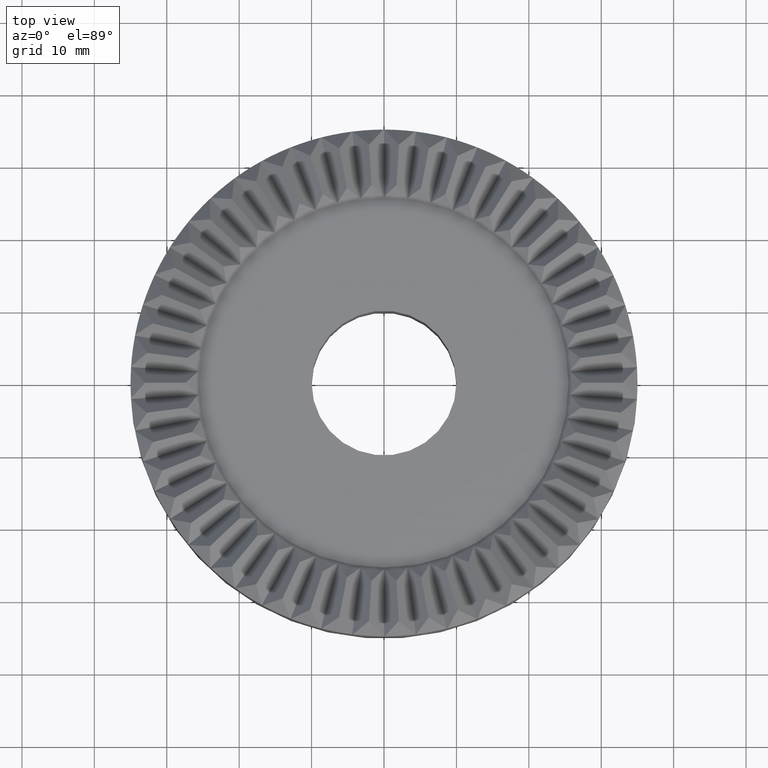
[diagram: clean part render]
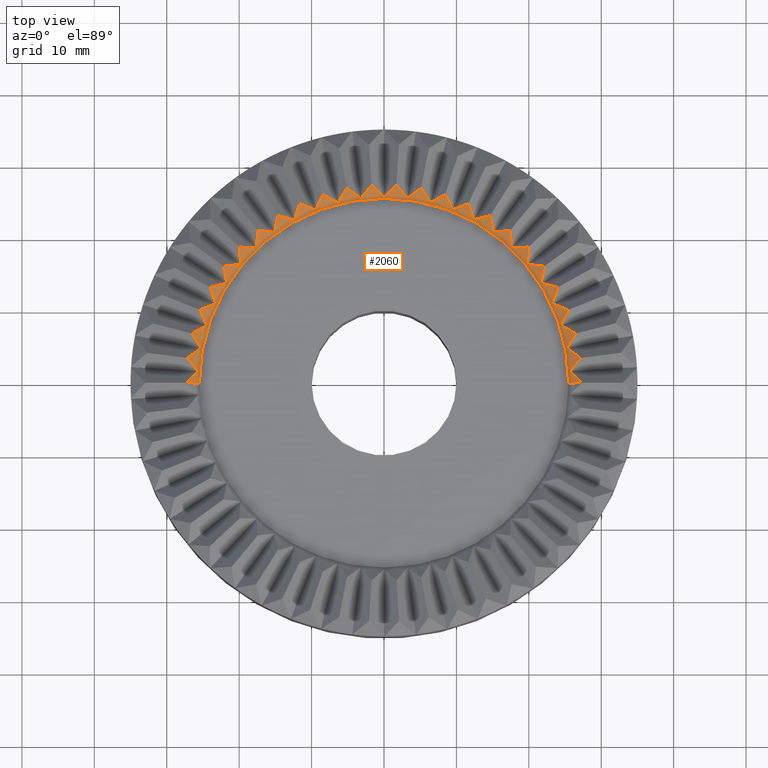
[diagram: same view with one face highlighted and labeled with its STEP entity id]
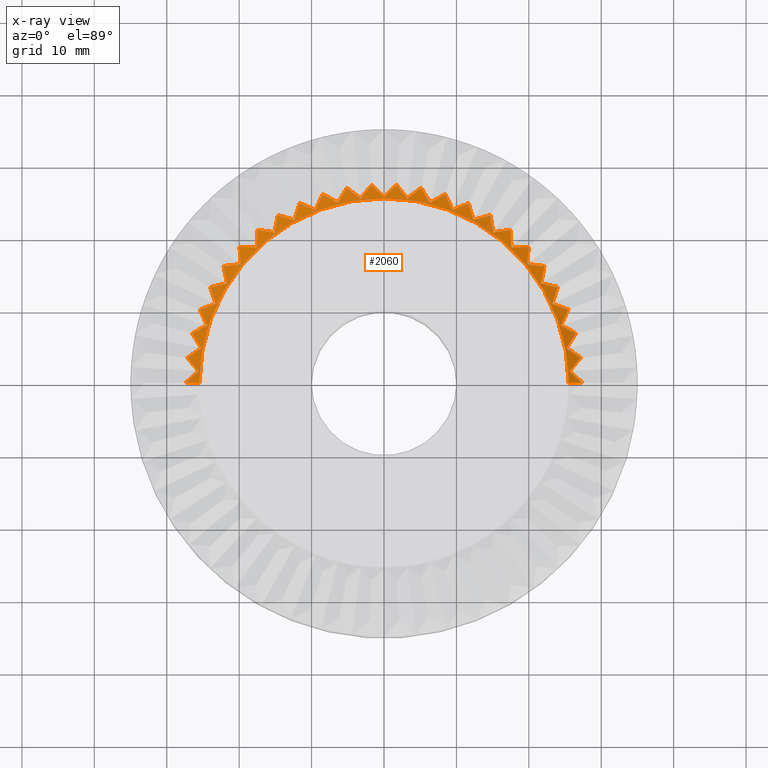
[diagram: x-ray of the same camera — body ghosted, the highlighted face saturated]
A machine part, top view. The second image highlights one B-rep face of the part: STEP entity #2060.
The next image is the same camera in x-ray: the body ghosted, the highlighted face saturated — about 0% of this face is hidden behind the body in this view.
In plain terms, the highlighted conical surface has half-angle 45 deg.
Its self-contained STEP definition (entity closure, byte-faithful):
#20 = CARTESIAN_POINT ( 'NONE',  ( -17.44653502338537600, 21.08923807742209200, 19.87037718060169700 ) ) ;
#21 = ORIENTED_EDGE ( 'NONE', *, *, #2880, .F. ) ;
#38 = VERTEX_POINT ( 'NONE', #3730 ) ;
#71 = ORIENTED_EDGE ( 'NONE', *, *, #3069, .F. ) ;
#80 = CARTESIAN_POINT ( 'NONE',  ( -23.25556846965079300, 10.94323986110385300, 18.20167238730329700 ) ) ;
#84 = B_SPLINE_CURVE_WITH_KNOTS ( 'NONE', 3,
 ( #4562, #1085, #3701, #1101 ),
 .UNSPECIFIED., .F., .F.,
 ( 4, 4 ),
 ( 3.394180524886262300E-007, 0.002889053276711179500 ),
 .UNSPECIFIED. ) ;
#89 = CARTESIAN_POINT ( 'NONE',  ( -1.718600202883020500, 27.31636799340355600, 19.87037718060149800 ) ) ;
#94 = CARTESIAN_POINT ( 'NONE',  ( 28.50000000000000000, 0.0000000000000000000, 21.00000000000000000 ) ) ;
#120 = CARTESIAN_POINT ( 'NONE',  ( 19.95214628534956300, 18.73631248715749500, 19.87037718060169300 ) ) ;
#121 = B_SPLINE_CURVE_WITH_KNOTS ( 'NONE', 3,
 ( #1725, #4321, #4765, #2153 ),
 .UNSPECIFIED., .F., .F.,
 ( 4, 4 ),
 ( 3.394180524866268700E-007, 0.002889053276711177800 ),
 .UNSPECIFIED. ) ;
#128 = CARTESIAN_POINT ( 'NONE',  ( 9.461416650824181900, 23.89681063371794800, 18.20167238730329700 ) ) ;
#131 = CARTESIAN_POINT ( 'NONE',  ( -3.221273708310759400, 25.49900702381200500, 18.20167238730329700 ) ) ;
#138 = VERTEX_POINT ( 'NONE', #5184 ) ;
#149 = CARTESIAN_POINT ( 'NONE',  ( -26.51048645087007600, 6.806736012703632700, 19.87037718060169700 ) ) ;
#170 = CARTESIAN_POINT ( 'NONE',  ( 22.14310028155906500, 16.08790405644009500, 19.87037718060169700 ) ) ;
#180 = CARTESIAN_POINT ( 'NONE',  ( -24.79184427667273000, 8.651943769504132600, 18.75204270945754500 ) ) ;
#185 = EDGE_CURVE ( 'NONE', #5058, #5194, #1898, .T. ) ;
#196 = B_SPLINE_CURVE_WITH_KNOTS ( 'NONE', 3,
 ( #80, #1345, #3541, #954 ),
 .UNSPECIFIED., .F., .F.,
 ( 4, 4 ),
 ( 3.394180524882186500E-007, 0.002889053276711170400 ),
 .UNSPECIFIED. ) ;
#199 = ORIENTED_EDGE ( 'NONE', *, *, #4937, .F. ) ;
#210 = ORIENTED_EDGE ( 'NONE', *, *, #875, .F. ) ;
#212 = CARTESIAN_POINT ( 'NONE',  ( 21.36884357978661300, 16.19768887784556800, 19.30852024980680400 ) ) ;
#213 = CARTESIAN_POINT ( 'NONE',  ( 11.90666127482051500, 24.02548684642122700, 19.30852024980681500 ) ) ;
#223 = CARTESIAN_POINT ( 'NONE',  ( -22.14310028155885800, 16.08790405644036200, 19.87037718060169300 ) ) ;
#226 = VERTEX_POINT ( 'NONE', #4817 ) ;
#229 = CARTESIAN_POINT ( 'NONE',  ( -26.16461381950308500, 2.214646090399074600, 18.75204270945754500 ) ) ;
#238 = B_SPLINE_CURVE_WITH_KNOTS ( 'NONE', 3,
 ( #4593, #1548, #262, #3292 ),
 .UNSPECIFIED., .F., .F.,
 ( 4, 4 ),
 ( 0.001924298654894845900, 0.004813012513553564500 ),
 .UNSPECIFIED. ) ;
#251 = CARTESIAN_POINT ( 'NONE',  ( 21.86131197991398900, 14.54560800194758300, 18.75204270945755200 ) ) ;
#258 = CARTESIAN_POINT ( 'NONE',  ( -9.461416650823839100, 23.89681063371807900, 18.20167238730329700 ) ) ;
#262 = CARTESIAN_POINT ( 'NONE',  ( 23.51197709033789400, 11.69096261788901500, 18.75204270945755200 ) ) ;
#271 = CARTESIAN_POINT ( 'NONE',  ( 27.37037718060170000, -7.172689979658260100E-014, 19.87037718060169300 ) ) ;
#274 = EDGE_CURVE ( 'NONE', #331, #1651, #2738, .T. ) ;
#304 = VERTEX_POINT ( 'NONE', #1147 ) ;
#305 = CARTESIAN_POINT ( 'NONE',  ( 25.24642510845361100, 4.816013158984427300, 18.20167238730329700 ) ) ;
#308 = CARTESIAN_POINT ( 'NONE',  ( 5.557696003136300100, 26.23174824630628500, 19.30852024980681100 ) ) ;
#327 = ORIENTED_EDGE ( 'NONE', *, *, #1519, .F. ) ;
#331 = VERTEX_POINT ( 'NONE', #4455 ) ;
#334 = EDGE_CURVE ( 'NONE', #4509, #3887, #5316, .T. ) ;
#343 = CARTESIAN_POINT ( 'NONE',  ( 17.59400545025578600, 18.73571284260724200, 18.20167238730329700 ) ) ;
#363 = CARTESIAN_POINT ( 'NONE',  ( -27.37037718060170000, 2.754969630652511800E-013, 19.87037718060169300 ) ) ;
#364 = B_SPLINE_CURVE_WITH_KNOTS ( 'NONE', 3,
 ( #1426, #4461, #4903, #2300 ),
 .UNSPECIFIED., .F., .F.,
 ( 4, 4 ),
 ( 0.001924298654894850000, 0.004813012513553565300 ),
 .UNSPECIFIED. ) ;
#413 = B_SPLINE_CURVE_WITH_KNOTS ( 'NONE', 3,
 ( #4331, #1290, #4777, #2164 ),
 .UNSPECIFIED., .F., .F.,
 ( 4, 4 ),
 ( 0.001924298654894838500, 0.004813012513553565300 ),
 .UNSPECIFIED. ) ;
#415 = VERTEX_POINT ( 'NONE', #4623 ) ;
#421 = CARTESIAN_POINT ( 'NONE',  ( -21.70063972870404700, 13.77164474088914900, 18.20167238730329700 ) ) ;
#436 = B_SPLINE_CURVE_WITH_KNOTS ( 'NONE', 3,
 ( #3071, #4795, #907, #3930 ),
 .UNSPECIFIED., .F., .F.,
 ( 4, 4 ),
 ( 3.394180524890934300E-007, 0.002889053276711179500 ),
 .UNSPECIFIED. ) ;
#439 = ORIENTED_EDGE ( 'NONE', *, *, #4667, .F. ) ;
#450 = CARTESIAN_POINT ( 'NONE',  ( -17.55715305117545500, 19.52531818862505700, 18.75204270945754800 ) ) ;
#461 = CARTESIAN_POINT ( 'NONE',  ( -14.66578148204778900, 23.10957378510530800, 19.87037718060169300 ) ) ;
#497 = CARTESIAN_POINT ( 'NONE',  ( -10.19156391704509600, 24.19966319092554100, 18.75204270945755200 ) ) ;
#502 = CARTESIAN_POINT ( 'NONE',  ( -21.70063972870404700, 13.77164474088914900, 18.20167238730329700 ) ) ;
#508 = CARTESIAN_POINT ( 'NONE',  ( -19.95214628534934300, 18.73631248715776100, 19.87037718060171100 ) ) ;
#509 = B_SPLINE_CURVE_WITH_KNOTS ( 'NONE', 3,
 ( #2867, #5458, #710, #3745 ),
 .UNSPECIFIED., .F., .F.,
 ( 4, 4 ),
 ( 3.394180524877682400E-007, 0.002889053276711182500 ),
 .UNSPECIFIED. ) ;
#531 = CARTESIAN_POINT ( 'NONE',  ( -24.72570348353567800, 10.37459339758149700, 19.30852024980681800 ) ) ;
#541 = EDGE_CURVE ( 'NONE', #2216, #2702, #2699, .T. ) ;
#549 = EDGE_CURVE ( 'NONE', #2573, #5278, #1827, .T. ) ;
#556 = VERTEX_POINT ( 'NONE', #1286 ) ;
#579 = CARTESIAN_POINT ( 'NONE',  ( -19.95214628534934300, 18.73631248715776100, 19.87037718060171100 ) ) ;
#627 = CARTESIAN_POINT ( 'NONE',  ( -19.95214628534934300, 18.73631248715776100, 19.87037718060171100 ) ) ;
#632 = CARTESIAN_POINT ( 'NONE',  ( 19.17023514226682900, 18.74819152641308100, 19.30852024980680400 ) ) ;
#643 = CARTESIAN_POINT ( 'NONE',  ( -17.59400545025551200, 18.73571284260749400, 18.20167238730329700 ) ) ;
#652 = EDGE_CURVE ( 'NONE', #4013, #4349, #5385, .T. ) ;
#678 = CARTESIAN_POINT ( 'NONE',  ( 24.79184427667285800, 8.651943769503791500, 18.75204270945755200 ) ) ;
#685 = EDGE_CURVE ( 'NONE', #5041, #2650, #4083, .T. ) ;
#689 = EDGE_CURVE ( 'NONE', #1802, #226, #196, .T. ) ;
#705 = VERTEX_POINT ( 'NONE', #508 ) ;
#710 = CARTESIAN_POINT ( 'NONE',  ( -11.90666127482017500, 24.02548684642138700, 19.30852024980680400 ) ) ;
#721 = CARTESIAN_POINT ( 'NONE',  ( -25.49999999999999300, 3.238064074625089200E-015, 18.00000000000000400 ) ) ;
#748 = B_SPLINE_CURVE_WITH_KNOTS ( 'NONE', 3,
 ( #4507, #5366, #3643, #1049 ),
 .UNSPECIFIED., .F., .F.,
 ( 4, 4 ),
 ( 3.394180524877406600E-007, 0.002889053276711177800 ),
 .UNSPECIFIED. ) ;
#791 = B_SPLINE_CURVE_WITH_KNOTS ( 'NONE', 3,
 ( #2707, #1410, #2729, #131 ),
 .UNSPECIFIED., .F., .F.,
 ( 4, 4 ),
 ( 0.001924298654894848900, 0.004813012513553564500 ),
 .UNSPECIFIED. ) ;
#799 = EDGE_CURVE ( 'NONE', #2650, #1097, #1064, .T. ) ;
#809 = DIRECTION ( 'NONE',  ( 1.000000000000000000, 0.0000000000000000000, 0.0000000000000000000 ) ) ;
#816 = CARTESIAN_POINT ( 'NONE',  ( 0.5673862972167176300, 26.25204270945754100, 18.75204270945755200 ) ) ;
#823 = CARTESIAN_POINT ( 'NONE',  ( 8.801581739902577100, 25.32833906510024800, 19.30852024980681100 ) ) ;
#826 = CARTESIAN_POINT ( 'NONE',  ( 0.0000000000000000000, 0.0000000000000000000, 21.00000000000000000 ) ) ;
#837 = CARTESIAN_POINT ( 'NONE',  ( -25.83101526379211400, 7.193834260157009600, 19.30852024980681100 ) ) ;
#858 = B_SPLINE_CURVE_WITH_KNOTS ( 'NONE', 3,
 ( #363, #1664, #5144, #2541 ),
 .UNSPECIFIED., .F., .F.,
 ( 4, 4 ),
 ( 0.001924298654894845900, 0.004813012513553564500 ),
 .UNSPECIFIED. ) ;
#875 = EDGE_CURVE ( 'NONE', #4473, #3847, #2371, .T. ) ;
#885 = CARTESIAN_POINT ( 'NONE',  ( 14.66578148204808900, 23.10957378510512300, 19.87037718060169700 ) ) ;
#896 = CARTESIAN_POINT ( 'NONE',  ( -17.44653502338537600, 21.08923807742209200, 19.87037718060169700 ) ) ;
#905 = ORIENTED_EDGE ( 'NONE', *, *, #2582, .F. ) ;
#907 = CARTESIAN_POINT ( 'NONE',  ( 26.80852024980679700, 0.5439144570318337200, 19.30852024980680400 ) ) ;
#946 = CARTESIAN_POINT ( 'NONE',  ( 11.65373980582542600, 24.76545770920704100, 19.87037718060169300 ) ) ;
#947 = CARTESIAN_POINT ( 'NONE',  ( 25.89336444933556400, 4.361805947464525000, 18.75204270945754500 ) ) ;
#954 = CARTESIAN_POINT ( 'NONE',  ( -23.98484435868125800, 13.18577976830487200, 19.87037718060169300 ) ) ;
#963 = EDGE_CURVE ( 'NONE', #3539, #4528, #121, .T. ) ;
#964 = CARTESIAN_POINT ( 'NONE',  ( -11.65373980582511500, 24.76545770920719000, 19.87037718060169300 ) ) ;
#990 = EDGE_CURVE ( 'NONE', #2366, #2054, #995, .T. ) ;
#994 = CARTESIAN_POINT ( 'NONE',  ( 19.91490527713479300, 17.95519837605864000, 19.30852024980681100 ) ) ;
#995 = B_SPLINE_CURVE_WITH_KNOTS ( 'NONE', 3,
 ( #3485, #450, #3062, #896 ),
 .UNSPECIFIED., .F., .F.,
 ( 4, 4 ),
 ( 3.394180524870900300E-007, 0.002889053276711180800 ),
 .UNSPECIFIED. ) ;
#1007 = CARTESIAN_POINT ( 'NONE',  ( -23.99513976168306700, 10.66418967604892900, 18.75204270945755200 ) ) ;
#1034 = ORIENTED_EDGE ( 'NONE', *, *, #2500, .F. ) ;
#1048 = CARTESIAN_POINT ( 'NONE',  ( -23.23045258892456700, 13.39173899964443300, 19.30852024980681500 ) ) ;
#1049 = CARTESIAN_POINT ( 'NONE',  ( 17.44653502338564300, 21.08923807742187200, 19.87037718060169700 ) ) ;
#1050 = CARTESIAN_POINT ( 'NONE',  ( -8.457911691257853800, 26.03077557106753300, 19.87037718060169300 ) ) ;
#1064 = B_SPLINE_CURVE_WITH_KNOTS ( 'NONE', 3,
 ( #258, #3288, #1570, #4607 ),
 .UNSPECIFIED., .F., .F.,
 ( 4, 4 ),
 ( 3.394180524854551500E-007, 0.002889053276711181700 ),
 .UNSPECIFIED. ) ;
#1080 = CARTESIAN_POINT ( 'NONE',  ( 12.14981362553998100, 23.27818082441356000, 18.75204270945755200 ) ) ;
#1085 = CARTESIAN_POINT ( 'NONE',  ( -14.97153839034720100, 21.57184998686510000, 18.75204270945754500 ) ) ;
#1091 = CARTESIAN_POINT ( 'NONE',  ( -19.80347893590182200, 16.38286255632882400, 18.20167238730329700 ) ) ;
#1097 = VERTEX_POINT ( 'NONE', #1050 ) ;
#1099 = CARTESIAN_POINT ( 'NONE',  ( -27.15455358139722000, 3.430417875919730400, 19.87037718060169300 ) ) ;
#1101 = CARTESIAN_POINT ( 'NONE',  ( -14.66578148204778900, 23.10957378510530800, 19.87037718060169300 ) ) ;
#1103 = CIRCLE ( 'NONE', #2963, 25.49999999999999300 ) ;
#1112 = CARTESIAN_POINT ( 'NONE',  ( 1.718600202883273000, 27.31636799340373400, 19.87037718060169300 ) ) ;
#1121 = ORIENTED_EDGE ( 'NONE', *, *, #5137, .F. ) ;
#1142 = ORIENTED_EDGE ( 'NONE', *, *, #2353, .F. ) ;
#1147 = CARTESIAN_POINT ( 'NONE',  ( 25.49999999999999300, 0.0000000000000000000, 18.00000000000000400 ) ) ;
#1187 = B_SPLINE_CURVE_WITH_KNOTS ( 'NONE', 3,
 ( #5386, #2352, #632, #3660 ),
 .UNSPECIFIED., .F., .F.,
 ( 4, 4 ),
 ( 3.394180524873286300E-007, 0.002889053276711178200 ),
 .UNSPECIFIED. ) ;
#1239 = CARTESIAN_POINT ( 'NONE',  ( 4.489135529877348300, 26.43558705826791700, 19.30852024980680400 ) ) ;
#1253 = CARTESIAN_POINT ( 'NONE',  ( 13.90548131842721300, 22.92662622855227600, 19.30852024980680800 ) ) ;
#1282 = LINE ( 'NONE', #3144, #2168 ) ;
#1286 = CARTESIAN_POINT ( 'NONE',  ( -6.391746005946179000, 24.89420708718675700, 18.20167238730329700 ) ) ;
#1290 = CARTESIAN_POINT ( 'NONE',  ( 26.10154731368541900, 6.140181491805562600, 19.30852024980681500 ) ) ;
#1297 = VERTEX_POINT ( 'NONE', #1539 ) ;
#1303 = EDGE_CURVE ( 'NONE', #3236, #4509, #2649, .T. ) ;
#1305 = B_SPLINE_CURVE_WITH_KNOTS ( 'NONE', 3,
 ( #2241, #1799, #2678, #89 ),
 .UNSPECIFIED., .F., .F.,
 ( 4, 4 ),
 ( 3.394180524873027500E-007, 0.002889053276710869400 ),
 .UNSPECIFIED. ) ;
#1345 = CARTESIAN_POINT ( 'NONE',  ( -23.51197709033772700, 11.69096261788934000, 18.75204270945754800 ) ) ;
#1357 = ORIENTED_EDGE ( 'NONE', *, *, #1601, .F. ) ;
#1360 = CARTESIAN_POINT ( 'NONE',  ( -10.92236424492047300, 24.48866187079548600, 19.30852024980681500 ) ) ;
#1409 = CARTESIAN_POINT ( 'NONE',  ( 23.23045258892474200, 13.39173899964411300, 19.30852024980680100 ) ) ;
#1410 = CARTESIAN_POINT ( 'NONE',  ( -4.489135529876984200, 26.43558705826799100, 19.30852024980681100 ) ) ;
#1416 = ORIENTED_EDGE ( 'NONE', *, *, #3297, .F. ) ;
#1426 = CARTESIAN_POINT ( 'NONE',  ( 27.15455358139726300, 3.430417875919392800, 19.87037718060169000 ) ) ;
#1477 = CARTESIAN_POINT ( 'NONE',  ( -25.44833311241572800, 10.07570785642018200, 19.87037718060169300 ) ) ;
#1478 = CARTESIAN_POINT ( 'NONE',  ( -21.70063972870404700, 13.77164474088914900, 18.20167238730329700 ) ) ;
#1519 = EDGE_CURVE ( 'NONE', #138, #5058, #5312, .T. ) ;
#1539 = CARTESIAN_POINT ( 'NONE',  ( 3.221273708311120000, 25.49900702381196300, 18.20167238730329700 ) ) ;
#1540 = CARTESIAN_POINT ( 'NONE',  ( -5.979056725922363900, 25.56838974784400500, 18.75204270945754500 ) ) ;
#1548 = CARTESIAN_POINT ( 'NONE',  ( 23.75451816506908600, 12.43846725550510800, 19.30852024980681500 ) ) ;
#1554 = EDGE_CURVE ( 'NONE', #304, #1755, #3454, .T. ) ;
#1557 = EDGE_CURVE ( 'NONE', #2856, #415, #1282, .T. ) ;
#1564 = CARTESIAN_POINT ( 'NONE',  ( 14.82396564873985200, 22.34373834804397400, 19.30852024980681500 ) ) ;
#1570 = CARTESIAN_POINT ( 'NONE',  ( -8.801581739902223600, 25.32833906510036600, 19.30852024980680400 ) ) ;
#1587 = CARTESIAN_POINT ( 'NONE',  ( 14.97153839034751100, 21.57184998686489400, 18.75204270945755200 ) ) ;
#1601 = EDGE_CURVE ( 'NONE', #3117, #2216, #2258, .T. ) ;
#1614 = B_SPLINE_CURVE_WITH_KNOTS ( 'NONE', 3,
 ( #4522, #3224, #4536, #1932 ),
 .UNSPECIFIED., .F., .F.,
 ( 4, 4 ),
 ( 0.001924298654894875600, 0.004813012513553567900 ),
 .UNSPECIFIED. ) ;
#1616 = CARTESIAN_POINT ( 'NONE',  ( -5.128697256807923200, 26.88557255214054500, 19.87037718060169000 ) ) ;
#1622 = ORIENTED_EDGE ( 'NONE', *, *, #1303, .F. ) ;
#1629 = CARTESIAN_POINT ( 'NONE',  ( 25.83101526379221400, 7.193834260156647200, 19.30852024980681100 ) ) ;
#1635 = ORIENTED_EDGE ( 'NONE', *, *, #689, .F. ) ;
#1651 = VERTEX_POINT ( 'NONE', #4511 ) ;
#1661 = B_SPLINE_CURVE_WITH_KNOTS ( 'NONE', 3,
 ( #4472, #2286, #3177, #579 ),
 .UNSPECIFIED., .F., .F.,
 ( 4, 4 ),
 ( 3.394180524860352700E-007, 0.002889053276711207700 ),
 .UNSPECIFIED. ) ;
#1664 = CARTESIAN_POINT ( 'NONE',  ( -26.80852024980680400, 0.5439144570322106400, 19.30852024980681100 ) ) ;
#1665 = B_SPLINE_CURVE_WITH_KNOTS ( 'NONE', 3,
 ( #223, #4955, #3693, #1091 ),
 .UNSPECIFIED., .F., .F.,
 ( 4, 4 ),
 ( 0.001924298654894845000, 0.004813012513553562700 ),
 .UNSPECIFIED. ) ;
#1670 = CARTESIAN_POINT ( 'NONE',  ( -7.766994962567521200, 25.66449668651853200, 19.30852024980681500 ) ) ;
#1673 = DIRECTION ( 'NONE',  ( -0.0000000000000000000, -0.0000000000000000000, 1.000000000000000000 ) ) ;
#1681 = ORIENTED_EDGE ( 'NONE', *, *, #2313, .F. ) ;
#1711 = EDGE_CURVE ( 'NONE', #1782, #4013, #84, .T. ) ;
#1722 = ORIENTED_EDGE ( 'NONE', *, *, #2248, .F. ) ;
#1723 = CARTESIAN_POINT ( 'NONE',  ( 27.15455358139726300, 3.430417875919392800, 19.87037718060169000 ) ) ;
#1725 = CARTESIAN_POINT ( 'NONE',  ( 6.391746005946532500, 24.89420708718666100, 18.20167238730329700 ) ) ;
#1742 = EDGE_CURVE ( 'NONE', #4349, #5041, #509, .T. ) ;
#1755 = VERTEX_POINT ( 'NONE', #271 ) ;
#1782 = VERTEX_POINT ( 'NONE', #2480 ) ;
#1785 = CARTESIAN_POINT ( 'NONE',  ( -14.66578148204778900, 23.10957378510530800, 19.87037718060169300 ) ) ;
#1792 = DIRECTION ( 'NONE',  ( 0.0000000000000000000, 0.0000000000000000000, 1.000000000000000000 ) ) ;
#1799 = CARTESIAN_POINT ( 'NONE',  ( -2.727341113651138300, 26.11614987089860000, 18.75204270945748400 ) ) ;
#1802 = VERTEX_POINT ( 'NONE', #4666 ) ;
#1819 = CARTESIAN_POINT ( 'NONE',  ( 6.391746005946532500, 24.89420708718666100, 18.20167238730329700 ) ) ;
#1825 = CARTESIAN_POINT ( 'NONE',  ( -26.51048645087007600, 6.806736012703632700, 19.87037718060169700 ) ) ;
#1827 = B_SPLINE_CURVE_WITH_KNOTS ( 'NONE', 3,
 ( #421, #3031, #5606, #3443 ),
 .UNSPECIFIED., .F., .F.,
 ( 4, 4 ),
 ( 3.394180524873381600E-007, 0.002889053276711177800 ),
 .UNSPECIFIED. ) ;
#1830 = ORIENTED_EDGE ( 'NONE', *, *, #4398, .F. ) ;
#1832 = DIRECTION ( 'NONE',  ( -0.7071067811865487900, 8.659560562354948900E-017, 0.7071067811865463500 ) ) ;
#1843 = VERTEX_POINT ( 'NONE', #2935 ) ;
#1853 = CARTESIAN_POINT ( 'NONE',  ( 22.46935354221924500, 13.58748781137305900, 18.75204270945754500 ) ) ;
#1872 = CARTESIAN_POINT ( 'NONE',  ( -25.24642510845354300, 4.816013158984791400, 18.20167238730329700 ) ) ;
#1898 = B_SPLINE_CURVE_WITH_KNOTS ( 'NONE', 3,
 ( #3388, #816, #4714, #2071 ),
 .UNSPECIFIED., .F., .F.,
 ( 4, 4 ),
 ( 3.394180524873298500E-007, 0.002889053276711207300 ),
 .UNSPECIFIED. ) ;
#1929 = CARTESIAN_POINT ( 'NONE',  ( -18.38436667177504400, 18.74851289321847500, 18.75204270945755500 ) ) ;
#1932 = CARTESIAN_POINT ( 'NONE',  ( 3.221273708311120000, 25.49900702381196300, 18.20167238730329700 ) ) ;
#1967 = CARTESIAN_POINT ( 'NONE',  ( 25.44833311241586000, 10.07570785641987300, 19.87037718060169700 ) ) ;
#1974 = EDGE_LOOP ( 'NONE', ( #5483, #4912, #4399, #3816, #4089, #3164, #1034, #210, #3618, #3797, #4133, #2763, #1622, #1142, #1722, #4677, #4085, #4366, #5604, #4637, #4973, #439, #5017, #5420, #21, #199, #1416, #4161, #327, #905, #2329, #3053, #3665, #5111, #4028, #3075, #3394, #4493, #71, #3866, #2130, #4745, #4497, #3613, #1681, #1635, #4221, #1121, #5499, #1357, #3404, #3244, #1830 ) ) ;
#2001 = CARTESIAN_POINT ( 'NONE',  ( 25.44833311241586000, 10.07570785641987300, 19.87037718060169700 ) ) ;
#2003 = CARTESIAN_POINT ( 'NONE',  ( 14.66578148204808900, 23.10957378510512300, 19.87037718060169700 ) ) ;
#2012 = VERTEX_POINT ( 'NONE', #1616 ) ;
#2054 = VERTEX_POINT ( 'NONE', #3423 ) ;
#2060 = ADVANCED_FACE ( 'NONE', ( #5159 ), #5018, .F. ) ;
#2063 = B_SPLINE_CURVE_WITH_KNOTS ( 'NONE', 3,
 ( #3241, #213, #1080, #4111 ),
 .UNSPECIFIED., .F., .F.,
 ( 4, 4 ),
 ( 0.001924298654894844600, 0.004813012513553567100 ),
 .UNSPECIFIED. ) ;
#2069 = CARTESIAN_POINT ( 'NONE',  ( 17.50748722897072100, 20.30961574841575200, 19.30852024980681800 ) ) ;
#2071 = CARTESIAN_POINT ( 'NONE',  ( 1.718600202883273000, 27.31636799340373400, 19.87037718060169300 ) ) ;
#2091 = CARTESIAN_POINT ( 'NONE',  ( 17.44653502338564300, 21.08923807742187200, 19.87037718060169700 ) ) ;
#2130 = ORIENTED_EDGE ( 'NONE', *, *, #2334, .F. ) ;
#2132 = CARTESIAN_POINT ( 'NONE',  ( 8.457911691258178900, 26.03077557106742600, 19.87037718060169300 ) ) ;
#2153 = CARTESIAN_POINT ( 'NONE',  ( 8.457911691258178900, 26.03077557106742600, 19.87037718060169300 ) ) ;
#2162 = CARTESIAN_POINT ( 'NONE',  ( -3.221273708310759400, 25.49900702381200500, 18.20167238730329700 ) ) ;
#2164 = CARTESIAN_POINT ( 'NONE',  ( 25.24642510845361100, 4.816013158984427300, 18.20167238730329700 ) ) ;
#2168 = VECTOR ( 'NONE', #1832, 1000.000000000000000 ) ;
#2216 = VERTEX_POINT ( 'NONE', #1825 ) ;
#2217 = CARTESIAN_POINT ( 'NONE',  ( -12.38187510314166300, 22.52254720129294800, 18.20167238730329700 ) ) ;
#2237 = CARTESIAN_POINT ( 'NONE',  ( -11.65373980582511500, 24.76545770920719000, 19.87037718060169300 ) ) ;
#2241 = CARTESIAN_POINT ( 'NONE',  ( -3.221273708310759400, 25.49900702381200500, 18.20167238730329700 ) ) ;
#2246 = CARTESIAN_POINT ( 'NONE',  ( 0.0000000000000000000, 25.70167238730328700, 18.20167238730329700 ) ) ;
#2248 = EDGE_CURVE ( 'NONE', #3042, #5229, #2555, .T. ) ;
#2256 = CARTESIAN_POINT ( 'NONE',  ( 17.59400545025578600, 18.73571284260724200, 18.20167238730329700 ) ) ;
#2258 = B_SPLINE_CURVE_WITH_KNOTS ( 'NONE', 3,
 ( #1872, #4466, #2746, #149 ),
 .UNSPECIFIED., .F., .F.,
 ( 4, 4 ),
 ( 3.394180524870494300E-007, 0.002889053276711183400 ),
 .UNSPECIFIED. ) ;
#2278 = CARTESIAN_POINT ( 'NONE',  ( 25.44833311241586000, 10.07570785641987300, 19.87037718060169700 ) ) ;
#2281 = EDGE_CURVE ( 'NONE', #5186, #3117, #2995, .T. ) ;
#2284 = CARTESIAN_POINT ( 'NONE',  ( 23.98484435868142100, 13.18577976830458100, 19.87037718060169300 ) ) ;
#2286 = CARTESIAN_POINT ( 'NONE',  ( -19.86588092025182900, 17.17086045869066500, 18.75204270945755200 ) ) ;
#2293 = CARTESIAN_POINT ( 'NONE',  ( -9.461416650823839100, 23.89681063371807900, 18.20167238730329700 ) ) ;
#2300 = CARTESIAN_POINT ( 'NONE',  ( 25.65095600783554600, 1.613821361970893900, 18.20167238730329700 ) ) ;
#2303 = CARTESIAN_POINT ( 'NONE',  ( 11.65373980582542600, 24.76545770920704100, 19.87037718060169300 ) ) ;
#2313 = EDGE_CURVE ( 'NONE', #226, #2573, #4300, .T. ) ;
#2322 = CARTESIAN_POINT ( 'NONE',  ( -25.89336444933551100, 4.361805947464892700, 18.75204270945755200 ) ) ;
#2329 = ORIENTED_EDGE ( 'NONE', *, *, #3631, .F. ) ;
#2334 = EDGE_CURVE ( 'NONE', #705, #2366, #5181, .T. ) ;
#2352 = CARTESIAN_POINT ( 'NONE',  ( 18.38436667177530400, 18.74851289321820500, 18.75204270945754500 ) ) ;
#2353 = EDGE_CURVE ( 'NONE', #5229, #3236, #5599, .T. ) ;
#2366 = VERTEX_POINT ( 'NONE', #643 ) ;
#2370 = CARTESIAN_POINT ( 'NONE',  ( 20.58921219485328900, 16.29650314714039200, 18.75204270945754800 ) ) ;
#2371 = B_SPLINE_CURVE_WITH_KNOTS ( 'NONE', 3,
 ( #4248, #4674, #1629, #4695 ),
 .UNSPECIFIED., .F., .F.,
 ( 4, 4 ),
 ( 3.394180524860829600E-007, 0.002889053276711186000 ),
 .UNSPECIFIED. ) ;
#2415 = CARTESIAN_POINT ( 'NONE',  ( 22.00825337249068200, 15.31761679939548100, 19.30852024980681800 ) ) ;
#2480 = CARTESIAN_POINT ( 'NONE',  ( -15.10706398850927800, 20.79308974518588100, 18.20167238730329700 ) ) ;
#2489 = CARTESIAN_POINT ( 'NONE',  ( 6.391746005946532500, 24.89420708718666100, 18.20167238730329700 ) ) ;
#2490 = AXIS2_PLACEMENT_3D ( 'NONE', #826, #1673, #809 ) ;
#2497 = B_SPLINE_CURVE_WITH_KNOTS ( 'NONE', 3,
 ( #4557, #229, #3697, #1099 ),
 .UNSPECIFIED., .F., .F.,
 ( 4, 4 ),
 ( 3.394180524843460200E-007, 0.002889053276711171300 ),
 .UNSPECIFIED. ) ;
#2500 = EDGE_CURVE ( 'NONE', #3847, #331, #413, .T. ) ;
#2522 = CARTESIAN_POINT ( 'NONE',  ( 23.98484435868142100, 13.18577976830458100, 19.87037718060169300 ) ) ;
#2524 = EDGE_CURVE ( 'NONE', #3081, #1755, #436, .T. ) ;
#2535 = CARTESIAN_POINT ( 'NONE',  ( 3.853165687237627400, 25.97392515227813400, 18.75204270945754800 ) ) ;
#2541 = CARTESIAN_POINT ( 'NONE',  ( -25.65095600783552100, 1.613821361971263600, 18.20167238730329700 ) ) ;
#2550 = CARTESIAN_POINT ( 'NONE',  ( -6.391746005946179000, 24.89420708718675700, 18.20167238730329700 ) ) ;
#2555 = B_SPLINE_CURVE_WITH_KNOTS ( 'NONE', 3,
 ( #120, #994, #4460, #4902 ),
 .UNSPECIFIED., .F., .F.,
 ( 4, 4 ),
 ( 0.001924298654894843700, 0.004813012513553564500 ),
 .UNSPECIFIED. ) ;
#2566 = CARTESIAN_POINT ( 'NONE',  ( 9.136479041910831700, 24.61740084465003900, 18.75204270945755200 ) ) ;
#2573 = VERTEX_POINT ( 'NONE', #502 ) ;
#2582 = EDGE_CURVE ( 'NONE', #5025, #138, #1305, .T. ) ;
#2590 = VERTEX_POINT ( 'NONE', #5273 ) ;
#2594 = CARTESIAN_POINT ( 'NONE',  ( 19.95214628534956300, 18.73631248715749500, 19.87037718060169300 ) ) ;
#2618 = CARTESIAN_POINT ( 'NONE',  ( -16.66930064480983000, 21.00302399498254900, 19.30852024980681500 ) ) ;
#2632 = CARTESIAN_POINT ( 'NONE',  ( -15.10706398850927800, 20.79308974518588100, 18.20167238730329700 ) ) ;
#2637 = B_SPLINE_CURVE_WITH_KNOTS ( 'NONE', 3,
 ( #3399, #2535, #1239, #4277 ),
 .UNSPECIFIED., .F., .F.,
 ( 4, 4 ),
 ( 3.394180524878151500E-007, 0.002889053276711177800 ),
 .UNSPECIFIED. ) ;
#2649 = B_SPLINE_CURVE_WITH_KNOTS ( 'NONE', 3,
 ( #5446, #2415, #251, #3286 ),
 .UNSPECIFIED., .F., .F.,
 ( 4, 4 ),
 ( 0.001924298654894842600, 0.004813012513553567100 ),
 .UNSPECIFIED. ) ;
#2650 = VERTEX_POINT ( 'NONE', #2293 ) ;
#2654 = B_SPLINE_CURVE_WITH_KNOTS ( 'NONE', 3,
 ( #20, #2618, #5228, #2632 ),
 .UNSPECIFIED., .F., .F.,
 ( 4, 4 ),
 ( 0.001924298654894840700, 0.004813012513553567100 ),
 .UNSPECIFIED. ) ;
#2678 = CARTESIAN_POINT ( 'NONE',  ( -2.226162080393638400, 26.72146708758111100, 19.30852024980668000 ) ) ;
#2699 = B_SPLINE_CURVE_WITH_KNOTS ( 'NONE', 3,
 ( #3873, #837, #3429, #4310 ),
 .UNSPECIFIED., .F., .F.,
 ( 4, 4 ),
 ( 0.001924298654894845200, 0.004813012513553565300 ),
 .UNSPECIFIED. ) ;
#2700 = CARTESIAN_POINT ( 'NONE',  ( 23.99513976168320900, 10.66418967604859500, 18.75204270945754800 ) ) ;
#2702 = VERTEX_POINT ( 'NONE', #3209 ) ;
#2707 = CARTESIAN_POINT ( 'NONE',  ( -5.128697256807923200, 26.88557255214054500, 19.87037718060169000 ) ) ;
#2722 = CARTESIAN_POINT ( 'NONE',  ( 10.19156391704544100, 24.19966319092539200, 18.75204270945754500 ) ) ;
#2729 = CARTESIAN_POINT ( 'NONE',  ( -3.853165687237263700, 25.97392515227818800, 18.75204270945754800 ) ) ;
#2738 = B_SPLINE_CURVE_WITH_KNOTS ( 'NONE', 3,
 ( #305, #947, #4232, #1723 ),
 .UNSPECIFIED., .F., .F.,
 ( 4, 4 ),
 ( 3.394180524833916800E-007, 0.002889053276711169500 ),
 .UNSPECIFIED. ) ;
#2746 = CARTESIAN_POINT ( 'NONE',  ( -26.10154731368532300, 6.140181491805925900, 19.30852024980680400 ) ) ;
#2763 = ORIENTED_EDGE ( 'NONE', *, *, #334, .F. ) ;
#2796 = EDGE_CURVE ( 'NONE', #3819, #4473, #3920, .T. ) ;
#2821 = B_SPLINE_CURVE_WITH_KNOTS ( 'NONE', 3,
 ( #2132, #823, #2566, #5593 ),
 .UNSPECIFIED., .F., .F.,
 ( 4, 4 ),
 ( 0.001924298654894843900, 0.004813012513553562700 ),
 .UNSPECIFIED. ) ;
#2842 = CARTESIAN_POINT ( 'NONE',  ( -27.15455358139722000, 3.430417875919730400, 19.87037718060169300 ) ) ;
#2856 = VERTEX_POINT ( 'NONE', #721 ) ;
#2867 = CARTESIAN_POINT ( 'NONE',  ( -12.38187510314166300, 22.52254720129294800, 18.20167238730329700 ) ) ;
#2876 = CARTESIAN_POINT ( 'NONE',  ( -5.128697256807923200, 26.88557255214054500, 19.87037718060169000 ) ) ;
#2880 = EDGE_CURVE ( 'NONE', #1843, #3539, #4802, .T. ) ;
#2920 = CARTESIAN_POINT ( 'NONE',  ( 26.51048645087016800, 6.806736012703296100, 19.87037718060170000 ) ) ;
#2935 = CARTESIAN_POINT ( 'NONE',  ( 5.128697256808254500, 26.88557255214048800, 19.87037718060169300 ) ) ;
#2947 = CARTESIAN_POINT ( 'NONE',  ( 17.55715305117573500, 19.52531818862480900, 18.75204270945755500 ) ) ;
#2963 = AXIS2_PLACEMENT_3D ( 'NONE', #4393, #1792, #4829 ) ;
#2974 = B_SPLINE_CURVE_WITH_KNOTS ( 'NONE', 3,
 ( #5048, #1540, #5464, #2876 ),
 .UNSPECIFIED., .F., .F.,
 ( 4, 4 ),
 ( 3.394180524881874700E-007, 0.002889053276711171700 ),
 .UNSPECIFIED. ) ;
#2984 = CARTESIAN_POINT ( 'NONE',  ( 13.14422243037270400, 22.73149995777531600, 18.75204270945754800 ) ) ;
#2995 = B_SPLINE_CURVE_WITH_KNOTS ( 'NONE', 3,
 ( #3168, #4484, #2322, #5346 ),
 .UNSPECIFIED., .F., .F.,
 ( 4, 4 ),
 ( 0.001924298654894846500, 0.004813012513553564500 ),
 .UNSPECIFIED. ) ;
#3031 = CARTESIAN_POINT ( 'NONE',  ( -21.86131197991377900, 14.54560800194788000, 18.75204270945754500 ) ) ;
#3042 = VERTEX_POINT ( 'NONE', #2594 ) ;
#3045 = VERTEX_POINT ( 'NONE', #5612 ) ;
#3053 = ORIENTED_EDGE ( 'NONE', *, *, #4320, .F. ) ;
#3062 = CARTESIAN_POINT ( 'NONE',  ( -17.50748722897043000, 20.30961574841599000, 19.30852024980680800 ) ) ;
#3069 = EDGE_CURVE ( 'NONE', #2054, #1782, #2654, .T. ) ;
#3071 = CARTESIAN_POINT ( 'NONE',  ( 25.65095600783554600, 1.613821361970893900, 18.20167238730329700 ) ) ;
#3075 = ORIENTED_EDGE ( 'NONE', *, *, #1742, .F. ) ;
#3076 = CARTESIAN_POINT ( 'NONE',  ( 25.65095600783554600, 1.613821361970893900, 18.20167238730329700 ) ) ;
#3081 = VERTEX_POINT ( 'NONE', #3076 ) ;
#3117 = VERTEX_POINT ( 'NONE', #3533 ) ;
#3140 = CARTESIAN_POINT ( 'NONE',  ( 0.0000000000000000000, 25.70167238730328700, 18.20167238730329700 ) ) ;
#3144 = CARTESIAN_POINT ( 'NONE',  ( -28.50000000000000000, 3.490243377569956500E-015, 21.00000000000000000 ) ) ;
#3164 = ORIENTED_EDGE ( 'NONE', *, *, #274, .F. ) ;
#3168 = CARTESIAN_POINT ( 'NONE',  ( -27.15455358139722000, 3.430417875919730400, 19.87037718060169300 ) ) ;
#3170 = CARTESIAN_POINT ( 'NONE',  ( -25.44833311241572800, 10.07570785642018200, 19.87037718060169300 ) ) ;
#3177 = CARTESIAN_POINT ( 'NONE',  ( -19.91490527713454400, 17.95519837605892000, 19.30852024980681500 ) ) ;
#3197 = EDGE_CURVE ( 'NONE', #4791, #1802, #5503, .T. ) ;
#3209 = CARTESIAN_POINT ( 'NONE',  ( -24.44374300362791500, 7.942253551534317800, 18.20167238730329700 ) ) ;
#3224 = CARTESIAN_POINT ( 'NONE',  ( 2.226162080393907500, 26.72146708758120700, 19.30852024980680400 ) ) ;
#3236 = VERTEX_POINT ( 'NONE', #170 ) ;
#3239 = CARTESIAN_POINT ( 'NONE',  ( 22.14310028155906500, 16.08790405644009500, 19.87037718060169700 ) ) ;
#3241 = CARTESIAN_POINT ( 'NONE',  ( 11.65373980582542600, 24.76545770920704100, 19.87037718060169300 ) ) ;
#3244 = ORIENTED_EDGE ( 'NONE', *, *, #3336, .F. ) ;
#3267 = EDGE_CURVE ( 'NONE', #3045, #4934, #748, .T. ) ;
#3286 = CARTESIAN_POINT ( 'NONE',  ( 21.70063972870424300, 13.77164474088884700, 18.20167238730329700 ) ) ;
#3288 = CARTESIAN_POINT ( 'NONE',  ( -9.136479041910483500, 24.61740084465016000, 18.75204270945754500 ) ) ;
#3292 = CARTESIAN_POINT ( 'NONE',  ( 23.25556846965093900, 10.94323986110352600, 18.20167238730329700 ) ) ;
#3296 = EDGE_CURVE ( 'NONE', #5549, #3042, #1187, .T. ) ;
#3297 = EDGE_CURVE ( 'NONE', #5194, #1297, #1614, .T. ) ;
#3300 = EDGE_CURVE ( 'NONE', #4606, #2590, #2063, .T. ) ;
#3326 = CARTESIAN_POINT ( 'NONE',  ( -12.38187510314166300, 22.52254720129294800, 18.20167238730329700 ) ) ;
#3336 = EDGE_CURVE ( 'NONE', #3648, #5186, #2497, .T. ) ;
#3388 = CARTESIAN_POINT ( 'NONE',  ( 0.0000000000000000000, 25.70167238730328700, 18.20167238730329700 ) ) ;
#3394 = ORIENTED_EDGE ( 'NONE', *, *, #652, .F. ) ;
#3399 = CARTESIAN_POINT ( 'NONE',  ( 3.221273708311120000, 25.49900702381196300, 18.20167238730329700 ) ) ;
#3404 = ORIENTED_EDGE ( 'NONE', *, *, #2281, .F. ) ;
#3409 = B_SPLINE_CURVE_WITH_KNOTS ( 'NONE', 3,
 ( #2003, #1564, #1587, #4628 ),
 .UNSPECIFIED., .F., .F.,
 ( 4, 4 ),
 ( 0.001924298654894846800, 0.004813012513553567100 ),
 .UNSPECIFIED. ) ;
#3423 = CARTESIAN_POINT ( 'NONE',  ( -17.44653502338537600, 21.08923807742209200, 19.87037718060169700 ) ) ;
#3429 = CARTESIAN_POINT ( 'NONE',  ( -25.14250829310362800, 7.572710899055069300, 18.75204270945755200 ) ) ;
#3443 = CARTESIAN_POINT ( 'NONE',  ( -22.14310028155885800, 16.08790405644036200, 19.87037718060169300 ) ) ;
#3454 = LINE ( 'NONE', #94, #4480 ) ;
#3480 = CARTESIAN_POINT ( 'NONE',  ( 8.457911691258178900, 26.03077557106742600, 19.87037718060169300 ) ) ;
#3485 = CARTESIAN_POINT ( 'NONE',  ( -17.59400545025551200, 18.73571284260749400, 18.20167238730329700 ) ) ;
#3533 = CARTESIAN_POINT ( 'NONE',  ( -25.24642510845354300, 4.816013158984791400, 18.20167238730329700 ) ) ;
#3539 = VERTEX_POINT ( 'NONE', #1819 ) ;
#3541 = CARTESIAN_POINT ( 'NONE',  ( -23.75451816506890900, 12.43846725550542400, 19.30852024980680400 ) ) ;
#3592 = CARTESIAN_POINT ( 'NONE',  ( -25.65095600783552100, 1.613821361971263600, 18.20167238730329700 ) ) ;
#3613 = ORIENTED_EDGE ( 'NONE', *, *, #549, .F. ) ;
#3618 = ORIENTED_EDGE ( 'NONE', *, *, #2796, .F. ) ;
#3631 = EDGE_CURVE ( 'NONE', #2012, #5025, #791, .T. ) ;
#3639 = CARTESIAN_POINT ( 'NONE',  ( -24.44374300362791500, 7.942253551534317800, 18.20167238730329700 ) ) ;
#3640 = CARTESIAN_POINT ( 'NONE',  ( -23.98484435868125800, 13.18577976830487200, 19.87037718060169300 ) ) ;
#3643 = CARTESIAN_POINT ( 'NONE',  ( 16.66930064481011800, 21.00302399498230700, 19.30852024980680400 ) ) ;
#3648 = VERTEX_POINT ( 'NONE', #3592 ) ;
#3659 = CARTESIAN_POINT ( 'NONE',  ( -19.17023514226658400, 18.74819152641335800, 19.30852024980681800 ) ) ;
#3660 = CARTESIAN_POINT ( 'NONE',  ( 19.95214628534956300, 18.73631248715749500, 19.87037718060169300 ) ) ;
#3665 = ORIENTED_EDGE ( 'NONE', *, *, #5368, .F. ) ;
#3669 = EDGE_CURVE ( 'NONE', #38, #705, #1661, .T. ) ;
#3693 = CARTESIAN_POINT ( 'NONE',  ( -20.58921219485306900, 16.29650314714067200, 18.75204270945755200 ) ) ;
#3697 = CARTESIAN_POINT ( 'NONE',  ( -26.66529761800235200, 2.820373000903850800, 19.30852024980680100 ) ) ;
#3701 = CARTESIAN_POINT ( 'NONE',  ( -14.82396564873953300, 22.34373834804418000, 19.30852024980680400 ) ) ;
#3712 = CARTESIAN_POINT ( 'NONE',  ( 24.44374300362803300, 7.942253551533973200, 18.20167238730329700 ) ) ;
#3730 = CARTESIAN_POINT ( 'NONE',  ( -19.80347893590182200, 16.38286255632882400, 18.20167238730329700 ) ) ;
#3738 = B_SPLINE_CURVE_WITH_KNOTS ( 'NONE', 3,
 ( #4723, #1670, #5150, #2550 ),
 .UNSPECIFIED., .F., .F.,
 ( 4, 4 ),
 ( 0.001924298654894846300, 0.004813012513553563600 ),
 .UNSPECIFIED. ) ;
#3745 = CARTESIAN_POINT ( 'NONE',  ( -11.65373980582511500, 24.76545770920719000, 19.87037718060169300 ) ) ;
#3797 = ORIENTED_EDGE ( 'NONE', *, *, #4136, .F. ) ;
#3816 = ORIENTED_EDGE ( 'NONE', *, *, #2524, .F. ) ;
#3819 = VERTEX_POINT ( 'NONE', #2001 ) ;
#3847 = VERTEX_POINT ( 'NONE', #2920 ) ;
#3866 = ORIENTED_EDGE ( 'NONE', *, *, #990, .F. ) ;
#3873 = CARTESIAN_POINT ( 'NONE',  ( -26.51048645087007600, 6.806736012703632700, 19.87037718060169700 ) ) ;
#3887 = VERTEX_POINT ( 'NONE', #2522 ) ;
#3907 = B_SPLINE_CURVE_WITH_KNOTS ( 'NONE', 3,
 ( #128, #2722, #4908, #2303 ),
 .UNSPECIFIED., .F., .F.,
 ( 4, 4 ),
 ( 3.394180524879009600E-007, 0.002889053276711181700 ),
 .UNSPECIFIED. ) ;
#3920 = B_SPLINE_CURVE_WITH_KNOTS ( 'NONE', 3,
 ( #1967, #5007, #678, #3712 ),
 .UNSPECIFIED., .F., .F.,
 ( 4, 4 ),
 ( 0.001924298654894843300, 0.004813012513553566200 ),
 .UNSPECIFIED. ) ;
#3930 = CARTESIAN_POINT ( 'NONE',  ( 27.37037718060170000, -7.172689979658260100E-014, 19.87037718060169300 ) ) ;
#3971 = CARTESIAN_POINT ( 'NONE',  ( -1.140479748200941400, 26.78977243025415700, 19.30852024980666900 ) ) ;
#3977 = VERTEX_POINT ( 'NONE', #885 ) ;
#4013 = VERTEX_POINT ( 'NONE', #461 ) ;
#4028 = ORIENTED_EDGE ( 'NONE', *, *, #685, .F. ) ;
#4034 = EDGE_CURVE ( 'NONE', #304, #2856, #1103, .T. ) ;
#4043 = CARTESIAN_POINT ( 'NONE',  ( -23.25556846965079300, 10.94323986110385300, 18.20167238730329700 ) ) ;
#4079 = VERTEX_POINT ( 'NONE', #5297 ) ;
#4080 = CARTESIAN_POINT ( 'NONE',  ( -25.12616001592288800, 9.363155652615580100, 19.30852024980680100 ) ) ;
#4082 = CARTESIAN_POINT ( 'NONE',  ( -22.46935354221906100, 13.58748781137337100, 18.75204270945754800 ) ) ;
#4083 = B_SPLINE_CURVE_WITH_KNOTS ( 'NONE', 3,
 ( #2237, #1360, #497, #5270 ),
 .UNSPECIFIED., .F., .F.,
 ( 4, 4 ),
 ( 0.001924298654894844400, 0.004813012513553566200 ),
 .UNSPECIFIED. ) ;
#4085 = ORIENTED_EDGE ( 'NONE', *, *, #4368, .F. ) ;
#4089 = ORIENTED_EDGE ( 'NONE', *, *, #4147, .F. ) ;
#4111 = CARTESIAN_POINT ( 'NONE',  ( 12.38187510314198600, 22.52254720129276700, 18.20167238730329700 ) ) ;
#4133 = ORIENTED_EDGE ( 'NONE', *, *, #5206, .F. ) ;
#4136 = EDGE_CURVE ( 'NONE', #5353, #3819, #5546, .T. ) ;
#4147 = EDGE_CURVE ( 'NONE', #1651, #3081, #364, .T. ) ;
#4161 = ORIENTED_EDGE ( 'NONE', *, *, #185, .F. ) ;
#4174 = B_SPLINE_CURVE_WITH_KNOTS ( 'NONE', 3,
 ( #5577, #2984, #1253, #4294 ),
 .UNSPECIFIED., .F., .F.,
 ( 4, 4 ),
 ( 3.394180524873992500E-007, 0.002889053276711186900 ),
 .UNSPECIFIED. ) ;
#4221 = ORIENTED_EDGE ( 'NONE', *, *, #3197, .F. ) ;
#4232 = CARTESIAN_POINT ( 'NONE',  ( 26.52895650263802800, 3.899624059061185900, 19.30852024980679700 ) ) ;
#4248 = CARTESIAN_POINT ( 'NONE',  ( 24.44374300362803300, 7.942253551533973200, 18.20167238730329700 ) ) ;
#4260 = EDGE_CURVE ( 'NONE', #5278, #38, #1665, .T. ) ;
#4273 = CARTESIAN_POINT ( 'NONE',  ( 23.25556846965093900, 10.94323986110352600, 18.20167238730329700 ) ) ;
#4277 = CARTESIAN_POINT ( 'NONE',  ( 5.128697256808254500, 26.88557255214048800, 19.87037718060169300 ) ) ;
#4294 = CARTESIAN_POINT ( 'NONE',  ( 14.66578148204808900, 23.10957378510512300, 19.87037718060169700 ) ) ;
#4300 = B_SPLINE_CURVE_WITH_KNOTS ( 'NONE', 3,
 ( #3640, #1048, #4082, #1478 ),
 .UNSPECIFIED., .F., .F.,
 ( 4, 4 ),
 ( 0.001924298654894848900, 0.004813012513553564500 ),
 .UNSPECIFIED. ) ;
#4301 = CARTESIAN_POINT ( 'NONE',  ( 24.44374300362803300, 7.942253551533973200, 18.20167238730329700 ) ) ;
#4310 = CARTESIAN_POINT ( 'NONE',  ( -24.44374300362791500, 7.942253551534317800, 18.20167238730329700 ) ) ;
#4320 = EDGE_CURVE ( 'NONE', #556, #2012, #2974, .T. ) ;
#4321 = CARTESIAN_POINT ( 'NONE',  ( 7.078178352601189400, 25.28618327937650200, 18.75204270945754500 ) ) ;
#4329 = EDGE_CURVE ( 'NONE', #3977, #3045, #3409, .T. ) ;
#4331 = CARTESIAN_POINT ( 'NONE',  ( 26.51048645087016800, 6.806736012703296100, 19.87037718060170000 ) ) ;
#4349 = VERTEX_POINT ( 'NONE', #3326 ) ;
#4366 = ORIENTED_EDGE ( 'NONE', *, *, #3267, .F. ) ;
#4368 = EDGE_CURVE ( 'NONE', #4934, #5549, #5605, .T. ) ;
#4388 = CARTESIAN_POINT ( 'NONE',  ( -13.90548131842689700, 22.92662622855248200, 19.30852024980681100 ) ) ;
#4393 = CARTESIAN_POINT ( 'NONE',  ( 0.0000000000000000000, 0.0000000000000000000, 18.00000000000000400 ) ) ;
#4398 = EDGE_CURVE ( 'NONE', #415, #3648, #858, .T. ) ;
#4399 = ORIENTED_EDGE ( 'NONE', *, *, #1554, .T. ) ;
#4412 = CARTESIAN_POINT ( 'NONE',  ( -1.718600202883020500, 27.31636799340355600, 19.87037718060149800 ) ) ;
#4428 = CARTESIAN_POINT ( 'NONE',  ( 23.25556846965093900, 10.94323986110352600, 18.20167238730329700 ) ) ;
#4455 = CARTESIAN_POINT ( 'NONE',  ( 25.24642510845361100, 4.816013158984427300, 18.20167238730329700 ) ) ;
#4460 = CARTESIAN_POINT ( 'NONE',  ( 19.86588092025206400, 17.17086045869039200, 18.75204270945755200 ) ) ;
#4461 = CARTESIAN_POINT ( 'NONE',  ( 26.66529761800240500, 2.820373000903479100, 19.30852024980681500 ) ) ;
#4466 = CARTESIAN_POINT ( 'NONE',  ( -25.68072926883470300, 5.476478599453164600, 18.75204270945754500 ) ) ;
#4472 = CARTESIAN_POINT ( 'NONE',  ( -19.80347893590182200, 16.38286255632882400, 18.20167238730329700 ) ) ;
#4473 = VERTEX_POINT ( 'NONE', #4301 ) ;
#4480 = VECTOR ( 'NONE', #5301, 1000.000000000000000 ) ;
#4484 = CARTESIAN_POINT ( 'NONE',  ( -26.52895650263798500, 3.899624059061559000, 19.30852024980681100 ) ) ;
#4493 = ORIENTED_EDGE ( 'NONE', *, *, #1711, .F. ) ;
#4497 = ORIENTED_EDGE ( 'NONE', *, *, #4260, .F. ) ;
#4507 = CARTESIAN_POINT ( 'NONE',  ( 15.10706398850958400, 20.79308974518566800, 18.20167238730329700 ) ) ;
#4509 = VERTEX_POINT ( 'NONE', #4761 ) ;
#4511 = CARTESIAN_POINT ( 'NONE',  ( 27.15455358139726300, 3.430417875919392800, 19.87037718060169000 ) ) ;
#4522 = CARTESIAN_POINT ( 'NONE',  ( 1.718600202883273000, 27.31636799340373400, 19.87037718060169300 ) ) ;
#4528 = VERTEX_POINT ( 'NONE', #3480 ) ;
#4534 = CARTESIAN_POINT ( 'NONE',  ( 19.80347893590204600, 16.38286255632855100, 18.20167238730329700 ) ) ;
#4536 = CARTESIAN_POINT ( 'NONE',  ( 2.727341113651454900, 26.11614987089862400, 18.75204270945754500 ) ) ;
#4557 = CARTESIAN_POINT ( 'NONE',  ( -25.65095600783552100, 1.613821361971263600, 18.20167238730329700 ) ) ;
#4562 = CARTESIAN_POINT ( 'NONE',  ( -15.10706398850927800, 20.79308974518588100, 18.20167238730329700 ) ) ;
#4576 = B_SPLINE_CURVE_WITH_KNOTS ( 'NONE', 3,
 ( #3639, #180, #4080, #1477 ),
 .UNSPECIFIED., .F., .F.,
 ( 4, 4 ),
 ( 3.394180524879995900E-007, 0.002889053276711173400 ),
 .UNSPECIFIED. ) ;
#4593 = CARTESIAN_POINT ( 'NONE',  ( 23.98484435868142100, 13.18577976830458100, 19.87037718060169300 ) ) ;
#4606 = VERTEX_POINT ( 'NONE', #946 ) ;
#4607 = CARTESIAN_POINT ( 'NONE',  ( -8.457911691257853800, 26.03077557106753300, 19.87037718060169300 ) ) ;
#4623 = CARTESIAN_POINT ( 'NONE',  ( -27.37037718060170000, 2.754969630652511800E-013, 19.87037718060169300 ) ) ;
#4628 = CARTESIAN_POINT ( 'NONE',  ( 15.10706398850958400, 20.79308974518566800, 18.20167238730329700 ) ) ;
#4636 = CARTESIAN_POINT ( 'NONE',  ( 5.128697256808254500, 26.88557255214048800, 19.87037718060169300 ) ) ;
#4637 = ORIENTED_EDGE ( 'NONE', *, *, #5377, .F. ) ;
#4641 = CARTESIAN_POINT ( 'NONE',  ( -22.14310028155885800, 16.08790405644036200, 19.87037718060169300 ) ) ;
#4666 = CARTESIAN_POINT ( 'NONE',  ( -23.25556846965079300, 10.94323986110385300, 18.20167238730329700 ) ) ;
#4667 = EDGE_CURVE ( 'NONE', #4079, #4606, #3907, .T. ) ;
#4674 = CARTESIAN_POINT ( 'NONE',  ( 25.14250829310373400, 7.572710899054715000, 18.75204270945755200 ) ) ;
#4677 = ORIENTED_EDGE ( 'NONE', *, *, #3296, .F. ) ;
#4695 = CARTESIAN_POINT ( 'NONE',  ( 26.51048645087016800, 6.806736012703296100, 19.87037718060170000 ) ) ;
#4714 = CARTESIAN_POINT ( 'NONE',  ( 1.140479748201086700, 26.78977243025429900, 19.30852024980681500 ) ) ;
#4723 = CARTESIAN_POINT ( 'NONE',  ( -8.457911691257853800, 26.03077557106753300, 19.87037718060169300 ) ) ;
#4745 = ORIENTED_EDGE ( 'NONE', *, *, #3669, .F. ) ;
#4761 = CARTESIAN_POINT ( 'NONE',  ( 21.70063972870424300, 13.77164474088884700, 18.20167238730329700 ) ) ;
#4765 = CARTESIAN_POINT ( 'NONE',  ( 7.766994962567871100, 25.66449668651841500, 19.30852024980680100 ) ) ;
#4777 = CARTESIAN_POINT ( 'NONE',  ( 25.68072926883479200, 5.476478599452799600, 18.75204270945755200 ) ) ;
#4791 = VERTEX_POINT ( 'NONE', #5015 ) ;
#4795 = CARTESIAN_POINT ( 'NONE',  ( 26.23586678025521800, 1.082112710466246500, 18.75204270945754500 ) ) ;
#4802 = B_SPLINE_CURVE_WITH_KNOTS ( 'NONE', 3,
 ( #4636, #308, #5091, #2489 ),
 .UNSPECIFIED., .F., .F.,
 ( 4, 4 ),
 ( 0.001924298654894845000, 0.004813012513553566200 ),
 .UNSPECIFIED. ) ;
#4817 = CARTESIAN_POINT ( 'NONE',  ( -23.98484435868125800, 13.18577976830487200, 19.87037718060169300 ) ) ;
#4823 = CARTESIAN_POINT ( 'NONE',  ( -13.14422243037238000, 22.73149995777550500, 18.75204270945755200 ) ) ;
#4829 = DIRECTION ( 'NONE',  ( 1.000000000000000000, 0.0000000000000000000, 0.0000000000000000000 ) ) ;
#4853 = CARTESIAN_POINT ( 'NONE',  ( -0.5673862972166459100, 26.25204270945747000, 18.75204270945748100 ) ) ;
#4881 = CARTESIAN_POINT ( 'NONE',  ( 24.72570348353581000, 10.37459339758115600, 19.30852024980680400 ) ) ;
#4889 = CARTESIAN_POINT ( 'NONE',  ( 21.70063972870424300, 13.77164474088884700, 18.20167238730329700 ) ) ;
#4902 = CARTESIAN_POINT ( 'NONE',  ( 19.80347893590204600, 16.38286255632855100, 18.20167238730329700 ) ) ;
#4903 = CARTESIAN_POINT ( 'NONE',  ( 26.16461381950312400, 2.214646090398702900, 18.75204270945754800 ) ) ;
#4908 = CARTESIAN_POINT ( 'NONE',  ( 10.92236424492081200, 24.48866187079532600, 19.30852024980680400 ) ) ;
#4912 = ORIENTED_EDGE ( 'NONE', *, *, #4034, .F. ) ;
#4934 = VERTEX_POINT ( 'NONE', #2091 ) ;
#4937 = EDGE_CURVE ( 'NONE', #1297, #1843, #2637, .T. ) ;
#4955 = CARTESIAN_POINT ( 'NONE',  ( -21.36884357978639700, 16.19768887784586300, 19.30852024980681100 ) ) ;
#4957 = EDGE_CURVE ( 'NONE', #4528, #4079, #2821, .T. ) ;
#4973 = ORIENTED_EDGE ( 'NONE', *, *, #3300, .F. ) ;
#4983 = CARTESIAN_POINT ( 'NONE',  ( -17.59400545025551200, 18.73571284260749400, 18.20167238730329700 ) ) ;
#5007 = CARTESIAN_POINT ( 'NONE',  ( 25.12616001592303000, 9.363155652615244400, 19.30852024980681500 ) ) ;
#5015 = CARTESIAN_POINT ( 'NONE',  ( -25.44833311241572800, 10.07570785642018200, 19.87037718060169300 ) ) ;
#5017 = ORIENTED_EDGE ( 'NONE', *, *, #4957, .F. ) ;
#5018 = CONICAL_SURFACE ( 'NONE', #2490, 28.50000000000000000, 0.7853981633974500600 ) ;
#5025 = VERTEX_POINT ( 'NONE', #2162 ) ;
#5041 = VERTEX_POINT ( 'NONE', #964 ) ;
#5048 = CARTESIAN_POINT ( 'NONE',  ( -6.391746005946179000, 24.89420708718675700, 18.20167238730329700 ) ) ;
#5058 = VERTEX_POINT ( 'NONE', #3140 ) ;
#5091 = CARTESIAN_POINT ( 'NONE',  ( 5.979056725922723600, 25.56838974784392700, 18.75204270945755200 ) ) ;
#5106 = CARTESIAN_POINT ( 'NONE',  ( 17.44653502338564300, 21.08923807742187200, 19.87037718060169700 ) ) ;
#5111 = ORIENTED_EDGE ( 'NONE', *, *, #799, .F. ) ;
#5137 = EDGE_CURVE ( 'NONE', #2702, #4791, #4576, .T. ) ;
#5144 = CARTESIAN_POINT ( 'NONE',  ( -26.23586678025520800, 1.082112710466620200, 18.75204270945755200 ) ) ;
#5150 = CARTESIAN_POINT ( 'NONE',  ( -7.078178352600836800, 25.28618327937660800, 18.75204270945755200 ) ) ;
#5159 = FACE_OUTER_BOUND ( 'NONE', #1974, .T. ) ;
#5181 = B_SPLINE_CURVE_WITH_KNOTS ( 'NONE', 3,
 ( #627, #3659, #1929, #4983 ),
 .UNSPECIFIED., .F., .F.,
 ( 4, 4 ),
 ( 0.001924298654894819400, 0.004813012513553564500 ),
 .UNSPECIFIED. ) ;
#5184 = CARTESIAN_POINT ( 'NONE',  ( -1.718600202883020500, 27.31636799340355600, 19.87037718060149800 ) ) ;
#5186 = VERTEX_POINT ( 'NONE', #2842 ) ;
#5194 = VERTEX_POINT ( 'NONE', #1112 ) ;
#5206 = EDGE_CURVE ( 'NONE', #3887, #5353, #238, .T. ) ;
#5228 = CARTESIAN_POINT ( 'NONE',  ( -15.88958870399480700, 20.90484739115148100, 18.75204270945755200 ) ) ;
#5229 = VERTEX_POINT ( 'NONE', #5473 ) ;
#5270 = CARTESIAN_POINT ( 'NONE',  ( -9.461416650823839100, 23.89681063371807900, 18.20167238730329700 ) ) ;
#5273 = CARTESIAN_POINT ( 'NONE',  ( 12.38187510314198600, 22.52254720129276700, 18.20167238730329700 ) ) ;
#5278 = VERTEX_POINT ( 'NONE', #4641 ) ;
#5297 = CARTESIAN_POINT ( 'NONE',  ( 9.461416650824181900, 23.89681063371794800, 18.20167238730329700 ) ) ;
#5301 = DIRECTION ( 'NONE',  ( 0.7071067811865487900, 0.0000000000000000000, 0.7071067811865463500 ) ) ;
#5312 = B_SPLINE_CURVE_WITH_KNOTS ( 'NONE', 3,
 ( #4412, #3971, #4853, #2246 ),
 .UNSPECIFIED., .F., .F.,
 ( 4, 4 ),
 ( 0.001924298654895208900, 0.004813012513553564500 ),
 .UNSPECIFIED. ) ;
#5316 = B_SPLINE_CURVE_WITH_KNOTS ( 'NONE', 3,
 ( #4889, #1853, #1409, #2284 ),
 .UNSPECIFIED., .F., .F.,
 ( 4, 4 ),
 ( 3.394180524864586800E-007, 0.002889053276711172600 ),
 .UNSPECIFIED. ) ;
#5346 = CARTESIAN_POINT ( 'NONE',  ( -25.24642510845354300, 4.816013158984791400, 18.20167238730329700 ) ) ;
#5353 = VERTEX_POINT ( 'NONE', #4273 ) ;
#5366 = CARTESIAN_POINT ( 'NONE',  ( 15.88958870399510600, 20.90484739115125400, 18.75204270945754800 ) ) ;
#5368 = EDGE_CURVE ( 'NONE', #1097, #556, #3738, .T. ) ;
#5377 = EDGE_CURVE ( 'NONE', #2590, #3977, #4174, .T. ) ;
#5385 = B_SPLINE_CURVE_WITH_KNOTS ( 'NONE', 3,
 ( #1785, #4388, #4823, #2217 ),
 .UNSPECIFIED., .F., .F.,
 ( 4, 4 ),
 ( 0.001924298654894848700, 0.004813012513553568800 ),
 .UNSPECIFIED. ) ;
#5386 = CARTESIAN_POINT ( 'NONE',  ( 17.59400545025578600, 18.73571284260724200, 18.20167238730329700 ) ) ;
#5420 = ORIENTED_EDGE ( 'NONE', *, *, #963, .F. ) ;
#5446 = CARTESIAN_POINT ( 'NONE',  ( 22.14310028155906500, 16.08790405644009500, 19.87037718060169700 ) ) ;
#5458 = CARTESIAN_POINT ( 'NONE',  ( -12.14981362553965000, 23.27818082441372700, 18.75204270945754500 ) ) ;
#5464 = CARTESIAN_POINT ( 'NONE',  ( -5.557696003135938600, 26.23174824630634600, 19.30852024980679700 ) ) ;
#5473 = CARTESIAN_POINT ( 'NONE',  ( 19.80347893590204600, 16.38286255632855100, 18.20167238730329700 ) ) ;
#5483 = ORIENTED_EDGE ( 'NONE', *, *, #1557, .F. ) ;
#5499 = ORIENTED_EDGE ( 'NONE', *, *, #541, .F. ) ;
#5503 = B_SPLINE_CURVE_WITH_KNOTS ( 'NONE', 3,
 ( #3170, #531, #1007, #4043 ),
 .UNSPECIFIED., .F., .F.,
 ( 4, 4 ),
 ( 0.001924298654894851100, 0.004813012513553565300 ),
 .UNSPECIFIED. ) ;
#5546 = B_SPLINE_CURVE_WITH_KNOTS ( 'NONE', 3,
 ( #4428, #2700, #4881, #2278 ),
 .UNSPECIFIED., .F., .F.,
 ( 4, 4 ),
 ( 3.394180524872999400E-007, 0.002889053276711186000 ),
 .UNSPECIFIED. ) ;
#5549 = VERTEX_POINT ( 'NONE', #2256 ) ;
#5577 = CARTESIAN_POINT ( 'NONE',  ( 12.38187510314198600, 22.52254720129276700, 18.20167238730329700 ) ) ;
#5593 = CARTESIAN_POINT ( 'NONE',  ( 9.461416650824181900, 23.89681063371794800, 18.20167238730329700 ) ) ;
#5599 = B_SPLINE_CURVE_WITH_KNOTS ( 'NONE', 3,
 ( #4534, #2370, #212, #3239 ),
 .UNSPECIFIED., .F., .F.,
 ( 4, 4 ),
 ( 3.394180524858912700E-007, 0.002889053276711186400 ),
 .UNSPECIFIED. ) ;
#5604 = ORIENTED_EDGE ( 'NONE', *, *, #4329, .F. ) ;
#5605 = B_SPLINE_CURVE_WITH_KNOTS ( 'NONE', 3,
 ( #5106, #2069, #2947, #343 ),
 .UNSPECIFIED., .F., .F.,
 ( 4, 4 ),
 ( 0.001924298654894843500, 0.004813012513553562700 ),
 .UNSPECIFIED. ) ;
#5606 = CARTESIAN_POINT ( 'NONE',  ( -22.00825337249046500, 15.31761679939577200, 19.30852024980680400 ) ) ;
#5612 = CARTESIAN_POINT ( 'NONE',  ( 15.10706398850958400, 20.79308974518566800, 18.20167238730329700 ) ) ;